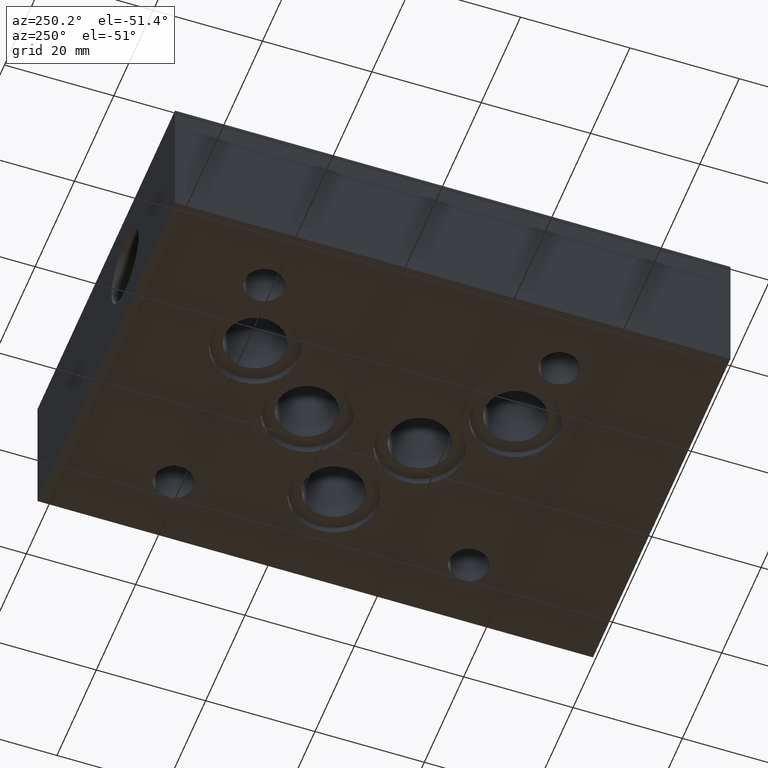
[diagram: clean part render]
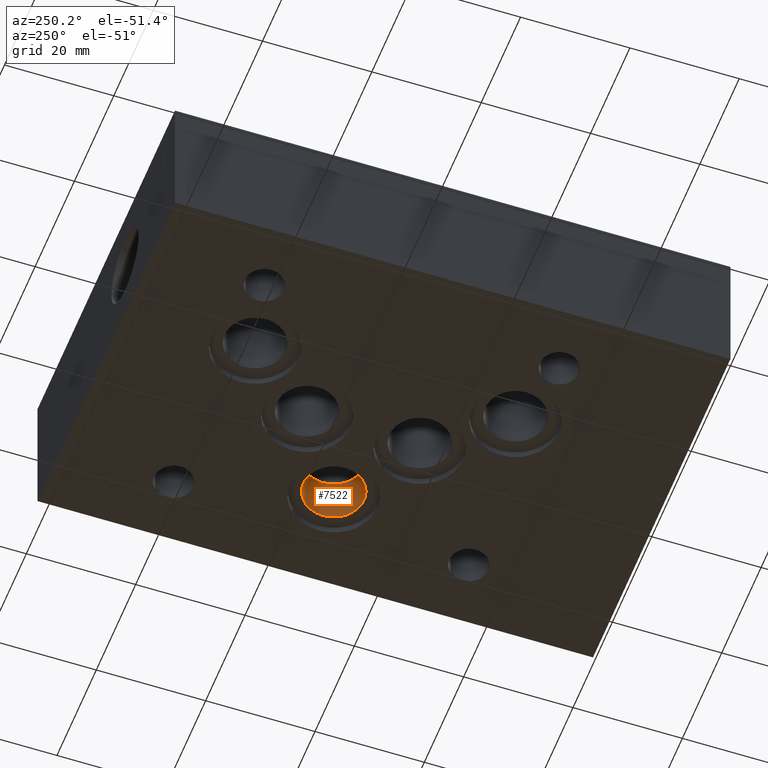
[diagram: same view with one face highlighted and labeled with its STEP entity id]
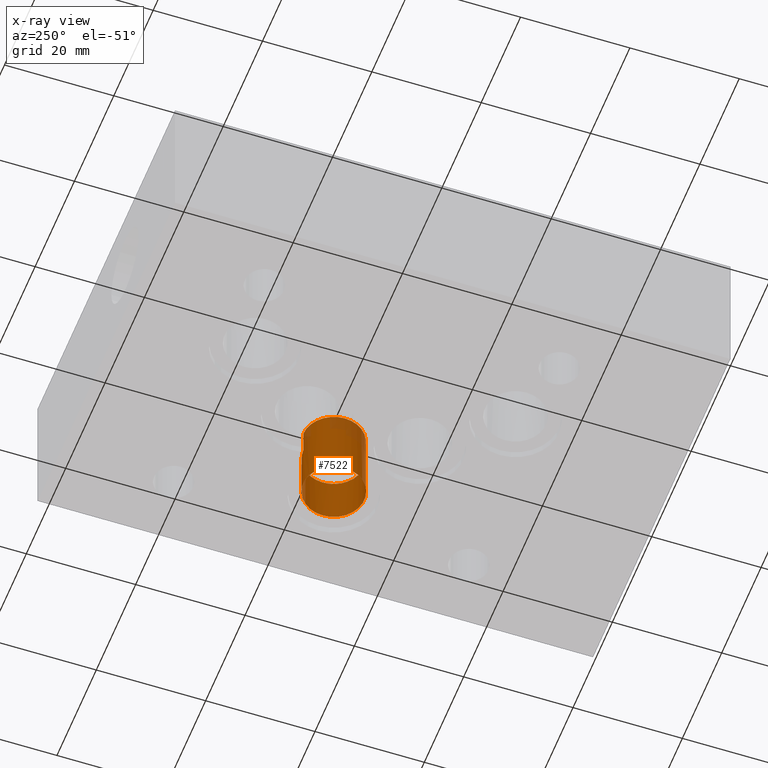
[diagram: x-ray of the same camera — body ghosted, the highlighted face saturated]
A machine part, auxiliary view. The second image highlights one B-rep face of the part: STEP entity #7522.
The next image is the same camera in x-ray: the body ghosted, the highlighted face saturated — about 12% of this face is hidden behind the body in this view.
In plain terms, the highlighted cylindrical surface (bore or boss wall) has radius 5.5626 mm, axis along (0, 0, -1).
Its self-contained STEP definition (entity closure, byte-faithful):
#21=CYLINDRICAL_SURFACE('',#7864,5.5626);
#72=CIRCLE('',#7862,5.5626);
#73=CIRCLE('',#7863,5.5626);
#74=CIRCLE('',#7865,5.5626);
#793=FACE_OUTER_BOUND('',#1202,.T.);
#1202=EDGE_LOOP('',(#6577,#6578,#6579,#6580,#6581,#6582,#6583,#6584));
#2026=LINE('',#12480,#2818);
#2027=LINE('',#12482,#2819);
#2028=LINE('',#12503,#2820);
#2818=VECTOR('',#9308,5.5626);
#2819=VECTOR('',#9309,10.);
#2820=VECTOR('',#9310,10.);
#2999=B_SPLINE_CURVE_WITH_KNOTS('',3,(#12484,#12485,#12486,#12487,#12488,
#12489,#12490,#12491,#12492,#12493,#12494,#12495,#12496,#12497,#12498,#12499,
#12500,#12501,#12502),.UNSPECIFIED.,.F.,.F.,(4,2,2,2,3,2,2,2,4),(-0.837508461669078,
-0.628607399995159,-0.419071465717485,-0.209535732858742,0.,0.209535732858742,
0.419071465717485,0.628607399995159,0.837508461669078),.UNSPECIFIED.);
#3638=VERTEX_POINT('',#12447);
#3640=VERTEX_POINT('',#12461);
#3641=VERTEX_POINT('',#12463);
#3642=VERTEX_POINT('',#12478);
#3643=VERTEX_POINT('',#12481);
#3644=VERTEX_POINT('',#12483);
#4642=EDGE_CURVE('',#3638,#3640,#72,.T.);
#4643=EDGE_CURVE('',#3640,#3641,#73,.T.);
#4645=EDGE_CURVE('',#3642,#3642,#74,.T.);
#4646=EDGE_CURVE('',#3642,#3640,#2026,.T.);
#4647=EDGE_CURVE('',#3643,#3638,#2027,.T.);
#4648=EDGE_CURVE('',#3644,#3643,#2999,.T.);
#4649=EDGE_CURVE('',#3641,#3644,#2028,.T.);
#6577=ORIENTED_EDGE('',*,*,#4645,.F.);
#6578=ORIENTED_EDGE('',*,*,#4646,.T.);
#6579=ORIENTED_EDGE('',*,*,#4642,.F.);
#6580=ORIENTED_EDGE('',*,*,#4647,.F.);
#6581=ORIENTED_EDGE('',*,*,#4648,.F.);
#6582=ORIENTED_EDGE('',*,*,#4649,.F.);
#6583=ORIENTED_EDGE('',*,*,#4643,.F.);
#6584=ORIENTED_EDGE('',*,*,#4646,.F.);
#7522=ADVANCED_FACE('',(#793),#21,.F.);
#7862=AXIS2_PLACEMENT_3D('',#12462,#9300,#9301);
#7863=AXIS2_PLACEMENT_3D('',#12464,#9302,#9303);
#7864=AXIS2_PLACEMENT_3D('',#12477,#9304,#9305);
#7865=AXIS2_PLACEMENT_3D('',#12479,#9306,#9307);
#9300=DIRECTION('center_axis',(0.,0.,-1.));
#9301=DIRECTION('ref_axis',(1.,0.,0.));
#9302=DIRECTION('center_axis',(0.,0.,-1.));
#9303=DIRECTION('ref_axis',(1.,0.,0.));
#9304=DIRECTION('center_axis',(0.,0.,-1.));
#9305=DIRECTION('ref_axis',(1.,0.,0.));
#9306=DIRECTION('center_axis',(0.,0.,1.));
#9307=DIRECTION('ref_axis',(1.,0.,0.));
#9308=DIRECTION('',(0.,0.,1.));
#9309=DIRECTION('',(0.,0.,1.));
#9310=DIRECTION('',(0.,0.,-1.));
#12447=CARTESIAN_POINT('',(51.63185,48.4124036244304,14.986));
#12461=CARTESIAN_POINT('',(46.0629,53.975,14.986));
#12462=CARTESIAN_POINT('Origin',(51.6255,53.975,14.986));
#12463=CARTESIAN_POINT('',(51.63185,59.5375963755696,14.986));
#12464=CARTESIAN_POINT('Origin',(51.6255,53.975,14.986));
#12477=CARTESIAN_POINT('Origin',(51.6255,53.975,7.493));
#12478=CARTESIAN_POINT('',(46.0629,53.975,1.3208));
#12479=CARTESIAN_POINT('Origin',(51.6255,53.975,1.3208));
#12480=CARTESIAN_POINT('',(46.0629,53.975,7.493));
#12481=CARTESIAN_POINT('',(51.63185,48.4124036244304,10.414));
#12482=CARTESIAN_POINT('',(51.63185,48.4124036244304,7.493));
#12483=CARTESIAN_POINT('',(51.63185,59.5375963755696,10.414));
#12484=CARTESIAN_POINT('Ctrl Pts',(51.63185,59.5375963755696,10.414));
#12485=CARTESIAN_POINT('Ctrl Pts',(52.3284666108836,59.5368011506098,10.4130817539091));
#12486=CARTESIAN_POINT('Ctrl Pts',(53.0710364174959,59.3971541004794,10.4121025004775));
#12487=CARTESIAN_POINT('Ctrl Pts',(54.4394700215052,58.8303302700539,10.4102971245951));
#12488=CARTESIAN_POINT('Ctrl Pts',(55.0649722197458,58.4022323111885,10.4094714989536));
#12489=CARTESIAN_POINT('Ctrl Pts',(56.0527330125341,57.4144711806448,10.4081673771097));
#12490=CARTESIAN_POINT('Ctrl Pts',(56.4808306353792,56.7889693141473,10.4076019587169));
#12491=CARTESIAN_POINT('Ctrl Pts',(57.0485141309132,55.4184599460084,10.4068520845462));
#12492=CARTESIAN_POINT('Ctrl Pts',(57.1881,54.6734524428625,10.4066676515813));
#12493=CARTESIAN_POINT('Ctrl Pts',(57.1881,53.975,10.4066676515813));
#12494=CARTESIAN_POINT('Ctrl Pts',(57.1881,53.2765475571375,10.4066676515813));
#12495=CARTESIAN_POINT('Ctrl Pts',(57.0485141309132,52.5315400539916,10.4068520845462));
#12496=CARTESIAN_POINT('Ctrl Pts',(56.4808306353792,51.1610306858527,10.4076019587169));
#12497=CARTESIAN_POINT('Ctrl Pts',(56.0527330125341,50.5355288193553,10.4081673771097));
#12498=CARTESIAN_POINT('Ctrl Pts',(55.0649722197458,49.5477676888115,10.4094714989536));
#12499=CARTESIAN_POINT('Ctrl Pts',(54.4394700215052,49.1196697299461,10.4102971245951));
#12500=CARTESIAN_POINT('Ctrl Pts',(53.0710364174959,48.5528458995206,10.4121025004775));
#12501=CARTESIAN_POINT('Ctrl Pts',(52.3284666108836,48.4131988493902,10.4130817539091));
#12502=CARTESIAN_POINT('Ctrl Pts',(51.63185,48.4124036244304,10.414));
#12503=CARTESIAN_POINT('',(51.63185,59.5375963755696,7.493));